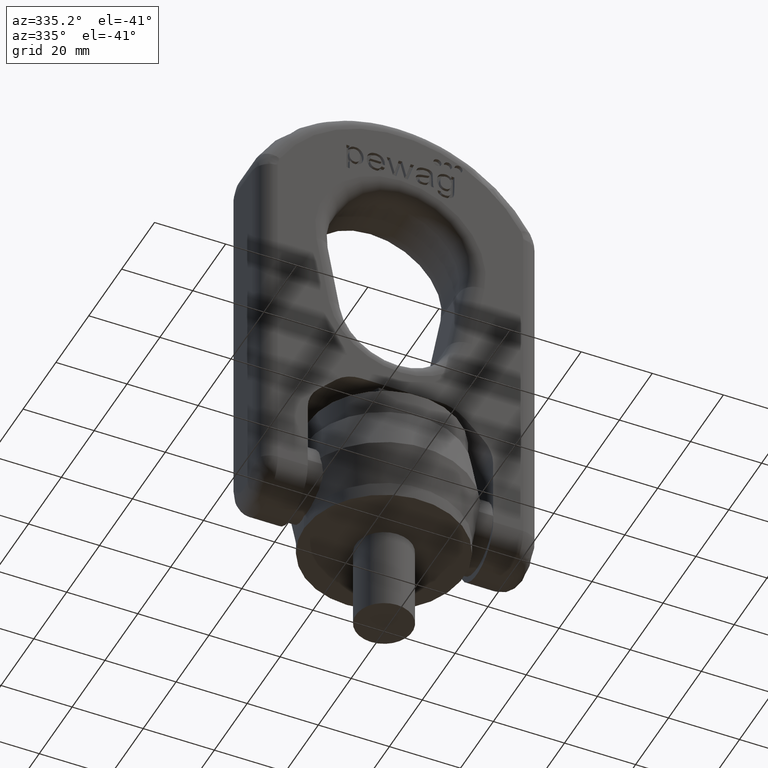
[diagram: clean part render]
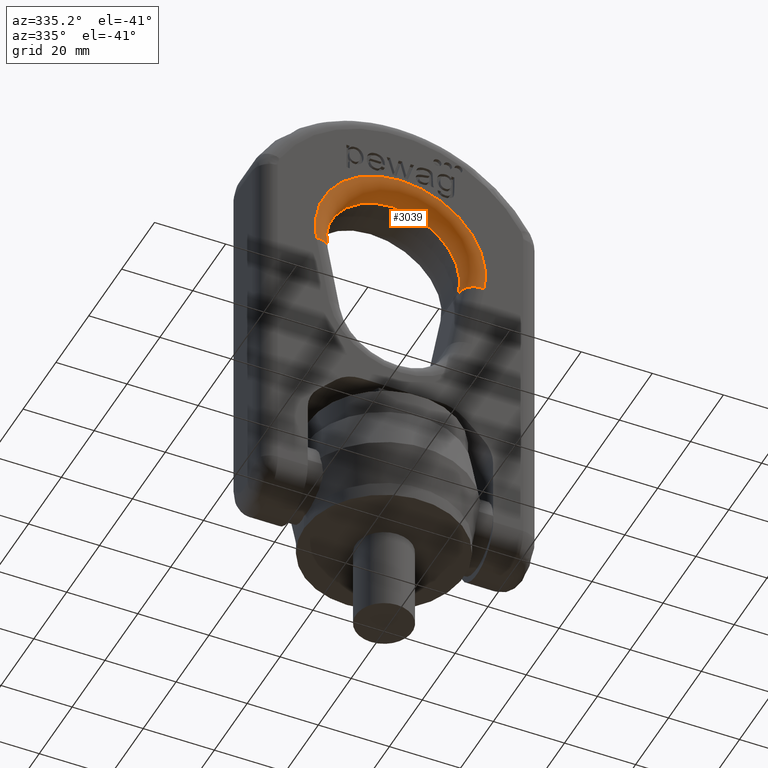
[diagram: same view with one face highlighted and labeled with its STEP entity id]
A machine part, auxiliary view. The second image highlights one B-rep face of the part: STEP entity #3039.
In plain terms, the highlighted toroidal blend (fillet) surface has major radius 24 mm and minor (blend) radius 5 mm.
Its self-contained STEP definition (entity closure, byte-faithful):
#206=TOROIDAL_SURFACE('',#6063,24.,5.);
#2664=FACE_OUTER_BOUND('',#3432,.T.);
#3039=ADVANCED_FACE('',(#2664),#206,.T.);
#3432=EDGE_LOOP('',(#4693,#4694,#4695,#4696));
#4693=ORIENTED_EDGE('',*,*,#5747,.T.);
#4694=ORIENTED_EDGE('',*,*,#5356,.F.);
#4695=ORIENTED_EDGE('',*,*,#5748,.T.);
#4696=ORIENTED_EDGE('',*,*,#5177,.F.);
#4744=VERTEX_POINT('',#7071);
#4745=VERTEX_POINT('',#7073);
#4914=VERTEX_POINT('',#7727);
#4916=VERTEX_POINT('',#7733);
#5177=EDGE_CURVE('',#4744,#4745,#5763,.T.);
#5356=EDGE_CURVE('',#4916,#4914,#5788,.T.);
#5747=EDGE_CURVE('',#4744,#4914,#5825,.T.);
#5748=EDGE_CURVE('',#4916,#4745,#5826,.T.);
#5763=CIRCLE('',#5869,24.);
#5788=CIRCLE('',#5897,19.);
#5825=CIRCLE('',#6059,5.);
#5826=CIRCLE('',#6061,5.);
#5869=AXIS2_PLACEMENT_3D('',#7072,#6194,#6195);
#5897=AXIS2_PLACEMENT_3D('',#7734,#6336,#6337);
#6059=AXIS2_PLACEMENT_3D('',#9840,#6926,#6927);
#6061=AXIS2_PLACEMENT_3D('',#9842,#6930,#6931);
#6063=AXIS2_PLACEMENT_3D('',#9844,#6934,#6935);
#6194=DIRECTION('',(0.,1.,0.));
#6195=DIRECTION('',(0.,0.,-1.));
#6336=DIRECTION('',(0.,-1.,0.));
#6337=DIRECTION('',(0.,0.,-1.));
#6926=DIRECTION('',(-0.17364817766693,0.,0.984807753012208));
#6927=DIRECTION('',(0.984807753012208,0.,0.17364817766693));
#6930=DIRECTION('',(0.17364817766693,2.40985256287532E-16,0.984807753012208));
#6931=DIRECTION('',(0.984807753012208,0.,-0.17364817766693));
#6934=DIRECTION('',(0.,-1.,0.));
#6935=DIRECTION('',(0.,0.,-1.));
#7071=CARTESIAN_POINT('',(-23.635386072293,-10.,89.8324437359937));
#7072=CARTESIAN_POINT('',(0.,-10.,94.));
#7073=CARTESIAN_POINT('',(23.635386072293,-10.,89.8324437359937));
#7727=CARTESIAN_POINT('',(-18.711347307232,-5.,90.7006846243283));
#7733=CARTESIAN_POINT('',(18.711347307232,-5.,90.7006846243283));
#7734=CARTESIAN_POINT('',(0.,-5.,94.));
#9840=CARTESIAN_POINT('',(-23.635386072293,-5.,89.8324437359937));
#9842=CARTESIAN_POINT('',(23.635386072293,-5.,89.8324437359937));
#9844=CARTESIAN_POINT('',(0.,-5.,94.));